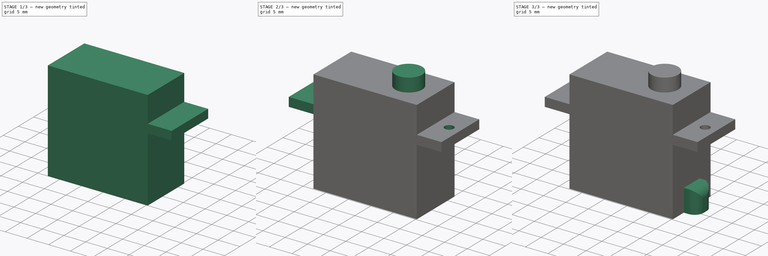
[diagram: build sequence overview — one tinted view per stage of 3, left to right]
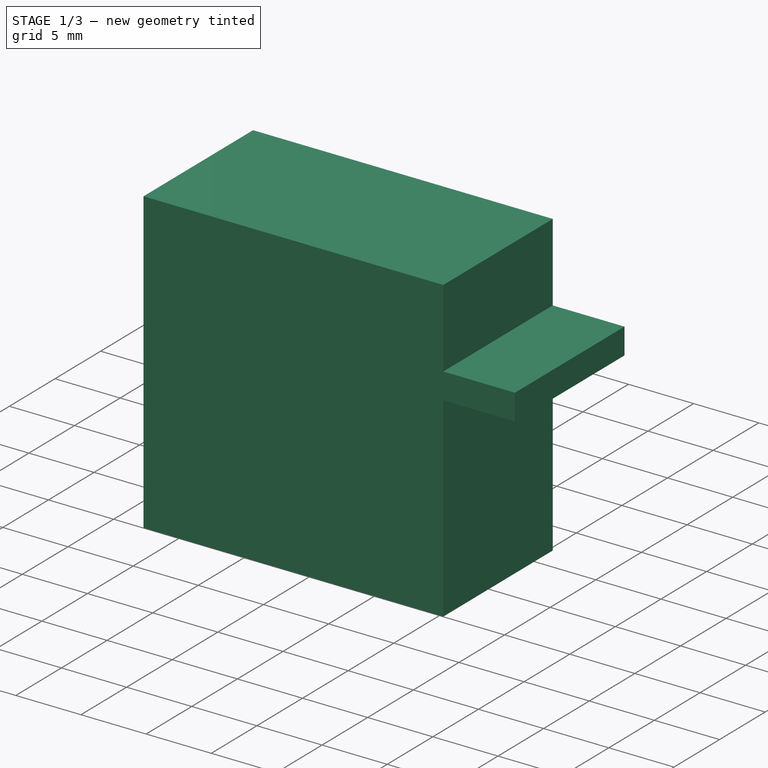
[diagram: stage 1 of 3 — iso view after this stage's code; geometry added in this stage tinted green]
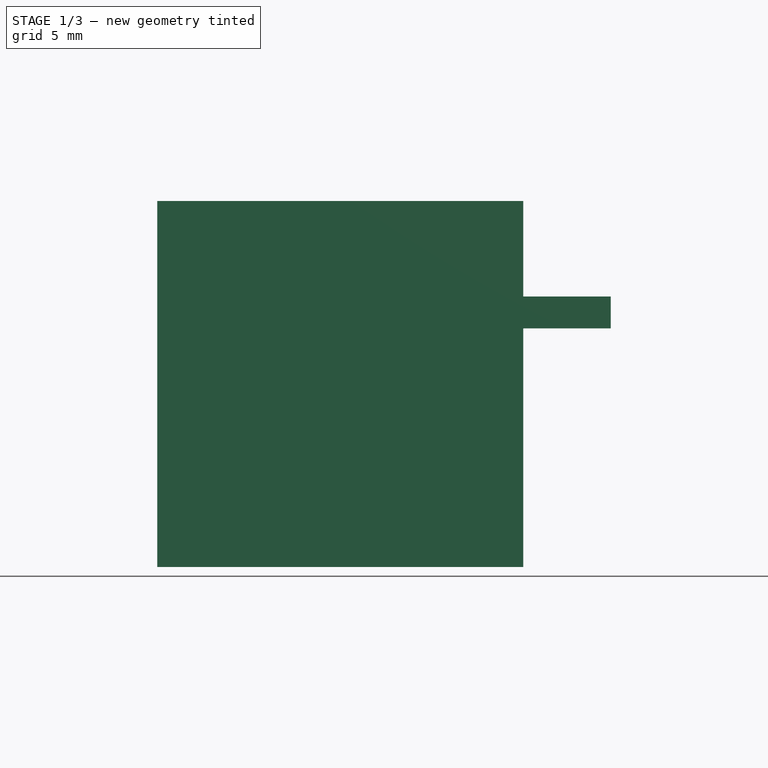
[diagram: stage 1 of 3 — front view after this stage's code; geometry added in this stage tinted green]
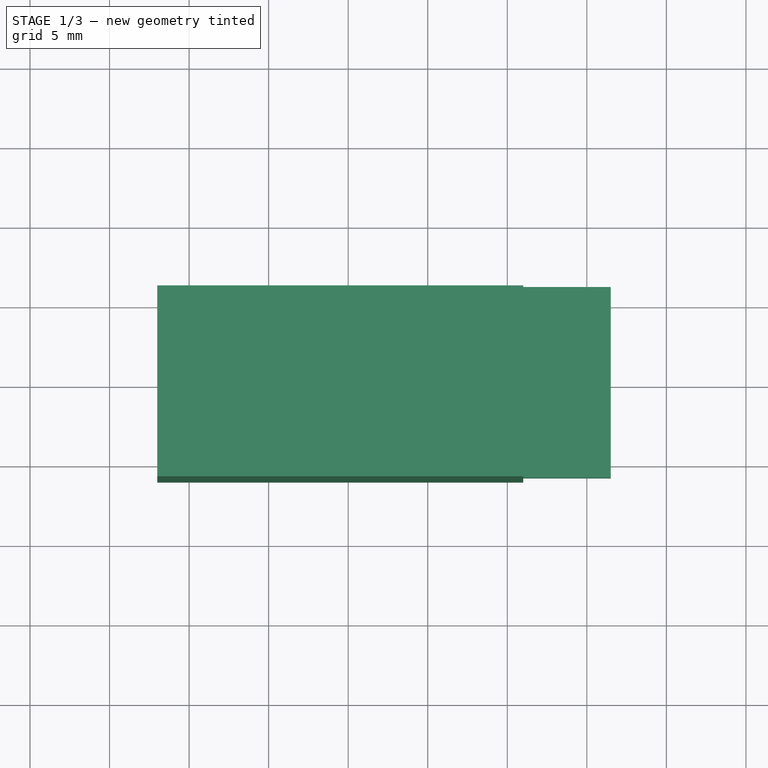
[diagram: stage 1 of 3 — top view after this stage's code; geometry added in this stage tinted green]
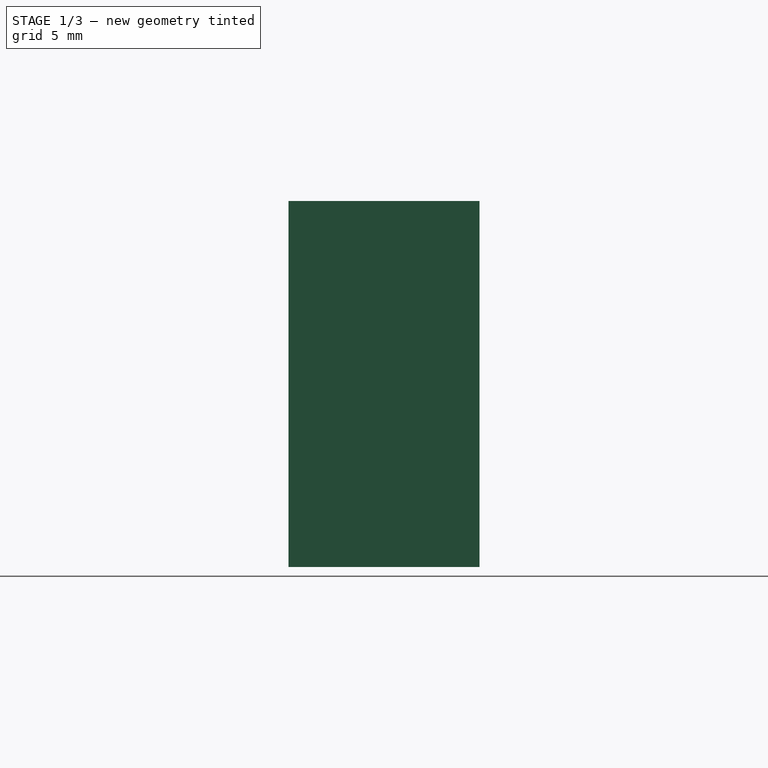
[diagram: stage 1 of 3 — right view after this stage's code; geometry added in this stage tinted green]
FCSTD DOCUMENT  (FreeCAD 0.18.3R)
Label: servo
License: All rights reserved
LicenseURL: http://en.wikipedia.org/wiki/All_rights_reserved
objects: Sketcher::SketchObject×6, PartDesign::Pad×5, PartDesign::Pocket×1, PartDesign::Fillet×1, PartDesign::Body×1
note: 20 computed .brp shape members not serialized (recipe doc carries the construction recipe); baked Part::Feature solids carry a one-line shape summary decoded from their .brp

FEATURE [Sketcher::SketchObject] Sketch
  MapMode = 5
  Support = -> [XY_Plane]
  sketch-geometry (4):
    g0: LineSegment StartX=-17 StartY=6 StartZ=0 EndX=6 EndY=6 EndZ=0
    g1: LineSegment StartX=6 StartY=6 StartZ=0 EndX=6 EndY=-6 EndZ=0
    g2: LineSegment StartX=6 StartY=-6 StartZ=0 EndX=-17 EndY=-6 EndZ=0
    g3: LineSegment StartX=-17 StartY=-6 StartZ=0 EndX=-17 EndY=6 EndZ=0
  constraints (12):
    c: Coincident(g0,g1)
    c: Coincident(g1,g2)
    c: Coincident(g2,g3)
    c: Coincident(g3,g0)
    c: Horizontal(g0)
    c: Horizontal(g2)
    c: Vertical(g1)
    c: Vertical(g3)
    c: DistanceY(g3,g3) = 12
    c: DistanceX(g0,g0) = 23
    c: DistanceY(g-1,g0) = 6
    c: DistanceX(g-1,g1) = 6
FEATURE [PartDesign::Pad] Pad
  Length = 23
  Length2 = 100
  Profile = -> Sketch
  Type = 0
FEATURE [Sketcher::SketchObject] Sketch001
  MapMode = 5
  Placement = pos=(6,0,0) rot=(0.57735,0.57735,0.57735;2.0944rad)
  Support = -> [Pad]
  sketch-geometry (4):
    g0: LineSegment StartX=-6 StartY=17 StartZ=0 EndX=6 EndY=17 EndZ=0
    g1: LineSegment StartX=6 StartY=17 StartZ=0 EndX=6 EndY=15 EndZ=0
    g2: LineSegment StartX=6 StartY=15 StartZ=0 EndX=-6 EndY=15 EndZ=0
    g3: LineSegment StartX=-6 StartY=15 StartZ=0 EndX=-6 EndY=17 EndZ=0
  constraints (12):
    c: Coincident(g0,g1)
    c: Coincident(g1,g2)
    c: Coincident(g2,g3)
    c: Coincident(g3,g0)
    c: Horizontal(g0)
    c: Horizontal(g2)
    c: Vertical(g1)
    c: Vertical(g3)
    c: DistanceX(g0,g0) = 12
    c: DistanceX(g-1,g0) = 6
    c: DistanceY(g-1,g1) = 15
    c: DistanceY(g1,g1) = 2
FEATURE [PartDesign::Pad] Pad001
  BaseFeature = -> Pad
  Length = 5.5
  Length2 = 100
  Profile = -> Sketch001
  Type = 0
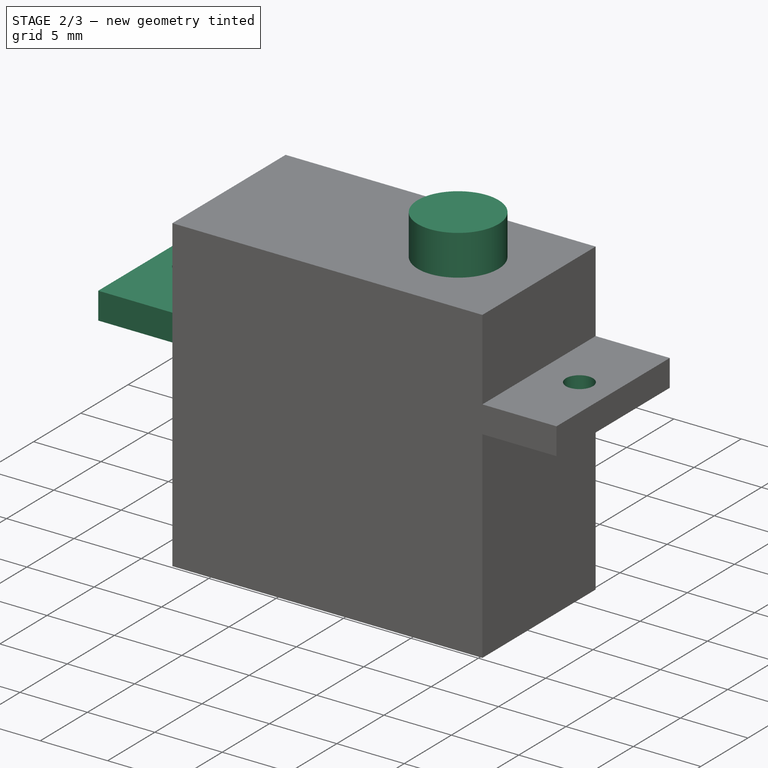
[diagram: stage 2 of 3 — iso view after this stage's code; geometry added in this stage tinted green]
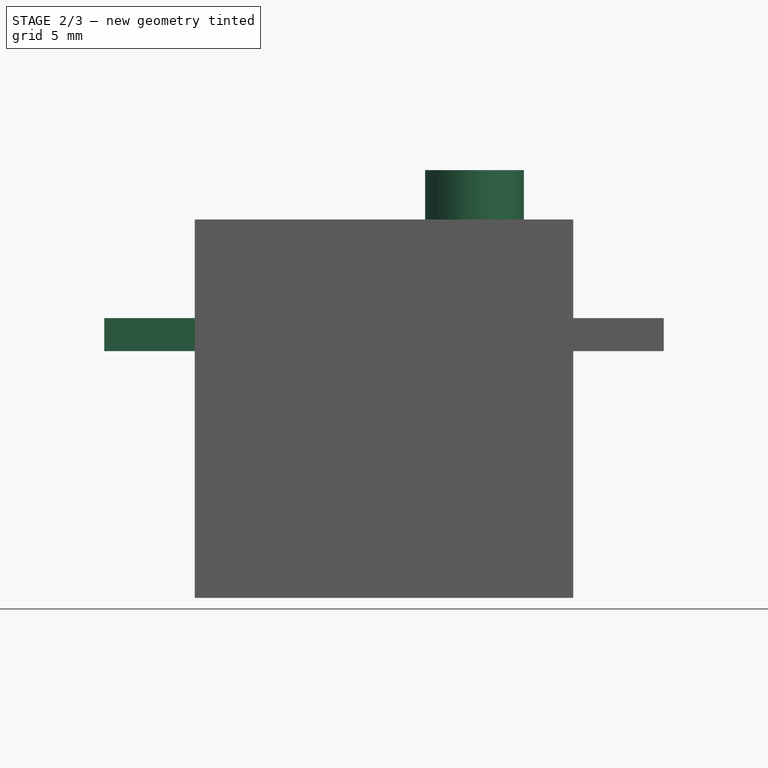
[diagram: stage 2 of 3 — front view after this stage's code; geometry added in this stage tinted green]
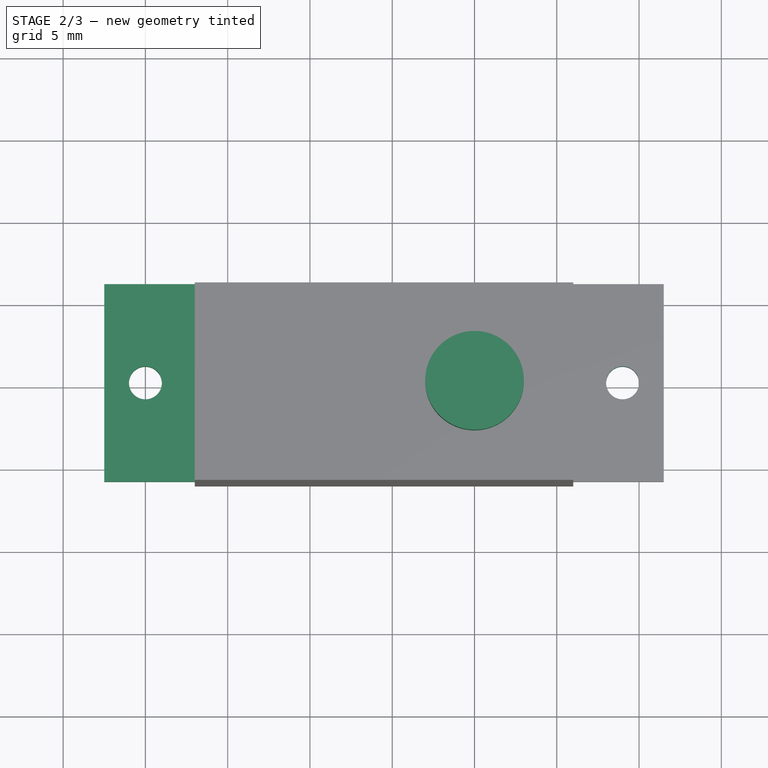
[diagram: stage 2 of 3 — top view after this stage's code; geometry added in this stage tinted green]
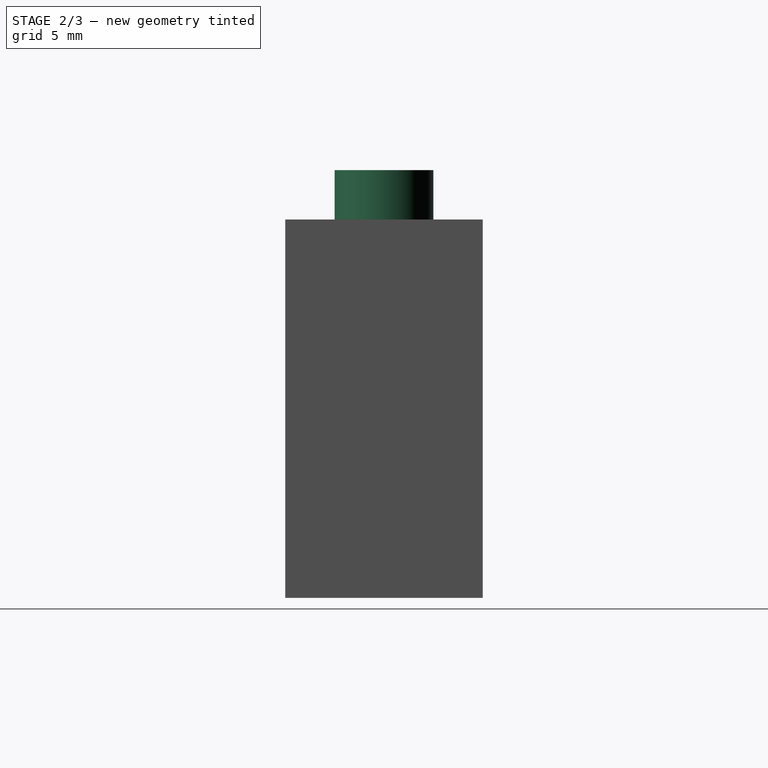
[diagram: stage 2 of 3 — right view after this stage's code; geometry added in this stage tinted green]
FEATURE [Sketcher::SketchObject] Sketch002
  MapMode = 5
  Placement = pos=(-17,0,0) rot=(0.57735,-0.57735,-0.57735;2.0944rad)
  Support = -> [Pad001]
  sketch-geometry (4):
    g0: LineSegment StartX=-6 StartY=17 StartZ=0 EndX=6 EndY=17 EndZ=0
    g1: LineSegment StartX=6 StartY=17 StartZ=0 EndX=6 EndY=15 EndZ=0
    g2: LineSegment StartX=6 StartY=15 StartZ=0 EndX=-6 EndY=15 EndZ=0
    g3: LineSegment StartX=-6 StartY=15 StartZ=0 EndX=-6 EndY=17 EndZ=0
  constraints (12):
    c: Coincident(g0,g1)
    c: Coincident(g1,g2)
    c: Coincident(g2,g3)
    c: Coincident(g3,g0)
    c: Horizontal(g0)
    c: Horizontal(g2)
    c: Vertical(g1)
    c: Vertical(g3)
    c: DistanceY(g-1,g1) = 15
    c: DistanceY(g1,g1) = 2
    c: DistanceX(g0,g0) = 12
    c: DistanceX(g-1,g1) = 6
FEATURE [PartDesign::Pad] Pad002
  BaseFeature = -> Pad001
  Length = 5.5
  Length2 = 100
  Profile = -> Sketch002
  Type = 0
FEATURE [Sketcher::SketchObject] Sketch003
  MapMode = 5
  Placement = pos=(0,0,17) rot=(0,0,1;0rad)
  Support = -> [Pad002]
  sketch-geometry (2):
    g0: Circle CenterX=-20 CenterY=0 CenterZ=0 NormalX=0 NormalY=0 NormalZ=1 AngleXU=0 Radius=1
    g1: Circle CenterX=9 CenterY=0 CenterZ=0 NormalX=0 NormalY=0 NormalZ=1 AngleXU=0 Radius=1
  constraints (6):
    c: Radius(g0) = 1
    c: Radius(g1) = 1
    c: DistanceY(g-1,g0) = 0
    c: DistanceY(g-1,g1) = 0
    c: DistanceX(g-1,g1) = 9
    c: DistanceX(g0,g-1) = 20
FEATURE [PartDesign::Pocket] Pocket
  BaseFeature = -> Pad002
  Length = 5
  Length2 = 100
  Profile = -> Sketch003
  Type = 0
FEATURE [Sketcher::SketchObject] Sketch004
  MapMode = 5
  Placement = pos=(0,0,23) rot=(0,0,1;0rad)
  Support = -> [Pocket]
  sketch-geometry (1):
    g0: Circle CenterX=0 CenterY=0 CenterZ=0 NormalX=0 NormalY=0 NormalZ=1 AngleXU=0 Radius=3
  constraints (2):
    c: Radius(g0) = 3
    c: Coincident(g-1,g0)
FEATURE [PartDesign::Pad] Pad003
  BaseFeature = -> Pocket
  Length = 3
  Length2 = 100
  Profile = -> Sketch004
  Type = 0
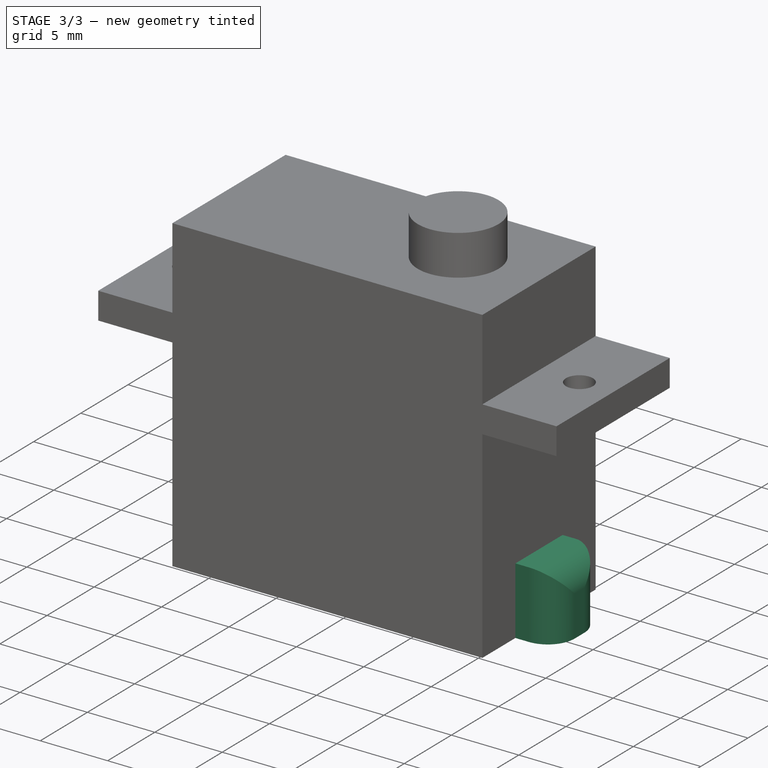
[diagram: stage 3 of 3 — iso view after this stage's code; geometry added in this stage tinted green]
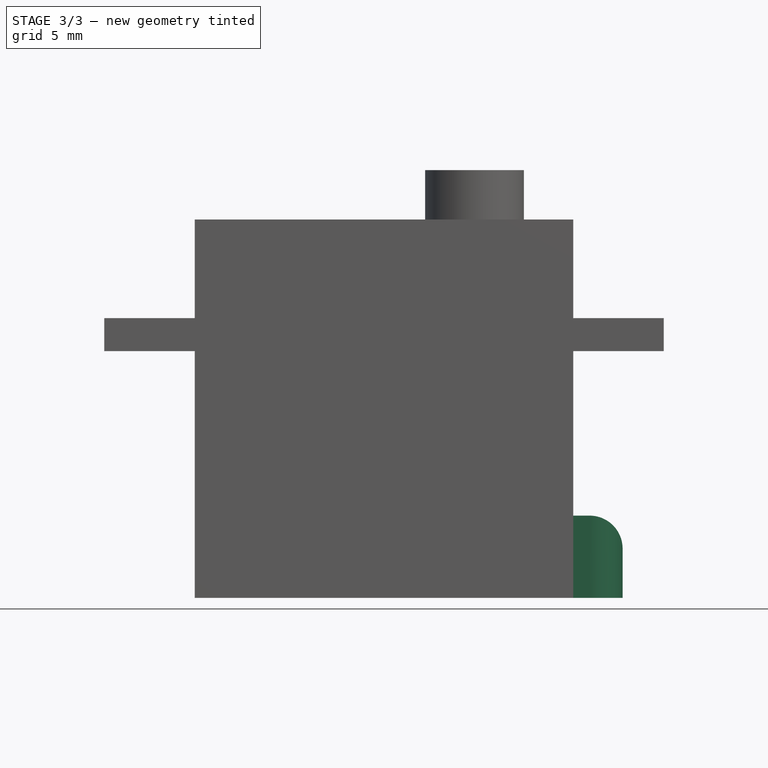
[diagram: stage 3 of 3 — front view after this stage's code; geometry added in this stage tinted green]
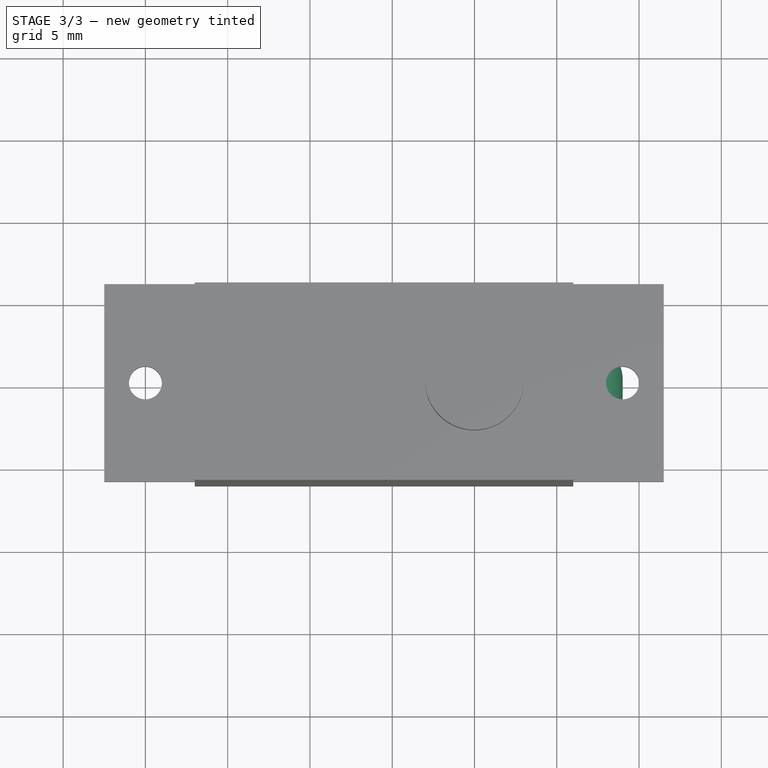
[diagram: stage 3 of 3 — top view after this stage's code; geometry added in this stage tinted green]
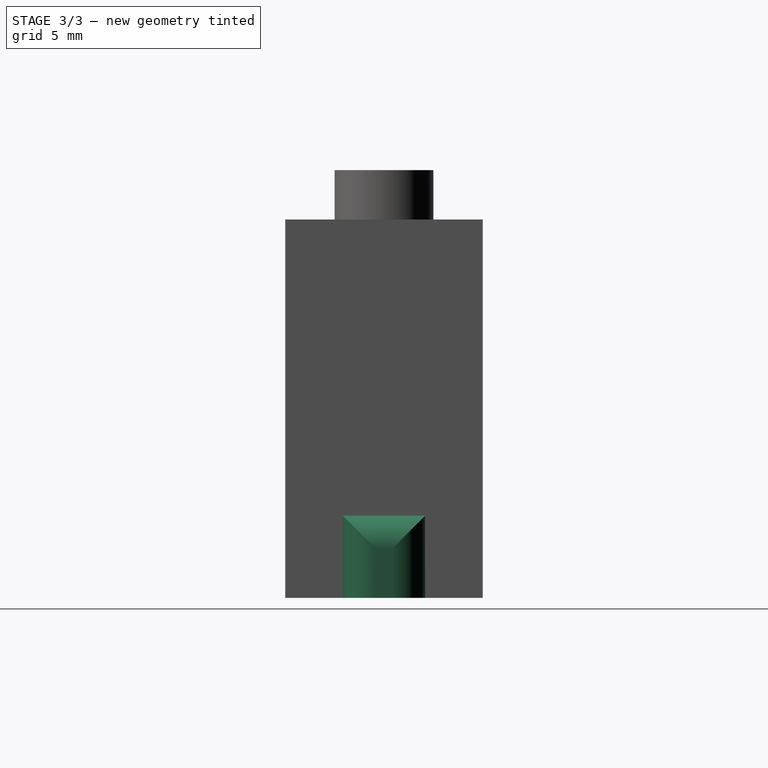
[diagram: stage 3 of 3 — right view after this stage's code; geometry added in this stage tinted green]
FEATURE [Sketcher::SketchObject] Sketch006
  MapMode = 5
  Placement = pos=(6,0,0) rot=(0.57735,0.57735,0.57735;2.0944rad)
  sketch-geometry (4):
    g0: LineSegment StartX=-2.5 StartY=5 StartZ=0 EndX=2.5 EndY=5 EndZ=0
    g1: LineSegment StartX=2.5 StartY=5 StartZ=0 EndX=2.5 EndY=0 EndZ=0
    g2: LineSegment StartX=2.5 StartY=0 StartZ=0 EndX=-2.5 EndY=0 EndZ=0
    g3: LineSegment StartX=-2.5 StartY=0 StartZ=0 EndX=-2.5 EndY=5 EndZ=0
  constraints (12):
    c: Coincident(g0,g1)
    c: Coincident(g1,g2)
    c: Coincident(g2,g3)
    c: Coincident(g3,g0)
    c: Horizontal(g0)
    c: Horizontal(g2)
    c: Vertical(g1)
    c: Vertical(g3)
    c: DistanceY(g-1,g1) = 0
    c: DistanceY(g1,g1) = 5
    c: DistanceX(g0,g0) = 5
    c: DistanceX(g-1,g1) = 2.5
FEATURE [PartDesign::Pad] Pad004
  BaseFeature = -> Pad003
  Length = 3
  Length2 = 100
  Profile = -> Sketch006
  Type = 0
FEATURE [PartDesign::Fillet] Fillet
  Base = -> Pad004 [Edge50,Edge46,Edge48]
  BaseFeature = -> Pad004
  Radius = 2
FEATURE [PartDesign::Body] Body  label="servo"
  Group = -> [Sketch,Pad,Sketch001,Pad001,Sketch002,Pad002,Sketch003,Pocket,Sketch004,Pad003,Sketch006,Pad004,Fillet]
  Origin = -> Origin
  Tip = -> Fillet
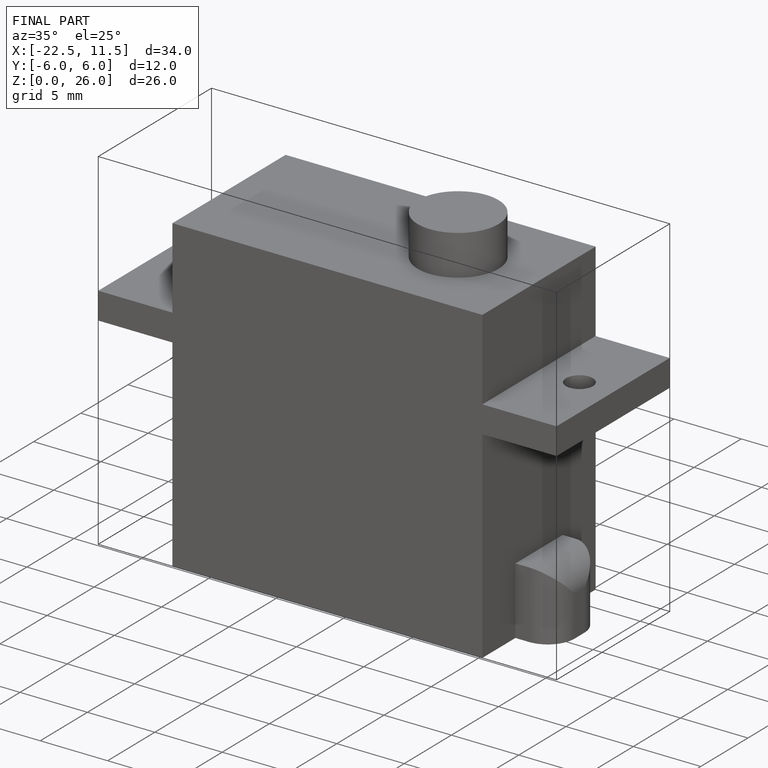
[diagram: finished part — iso view with bounding-box wireframe]
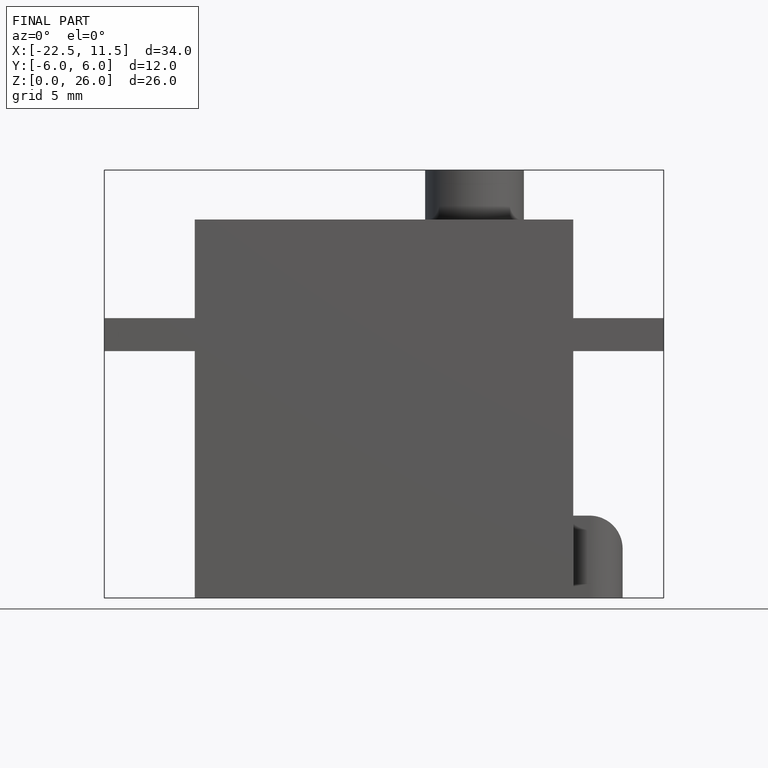
[diagram: finished part — front view with bounding-box wireframe]
